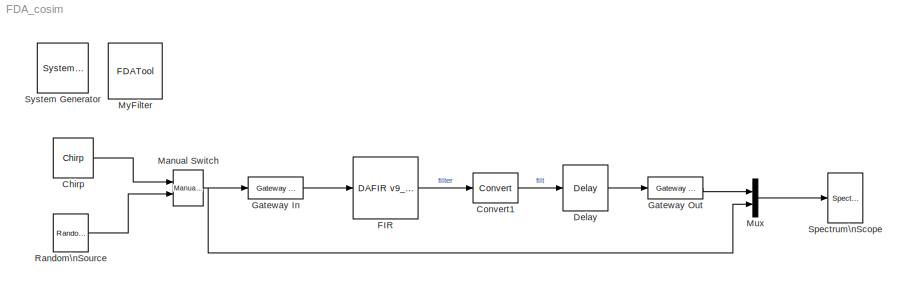
MODEL FDA_cosim
KIND model
BLOCK [Reference]  System Generator  REF=xbsIndex_r4/ System Generator
  AttributesFormatString = System\\nGenerator
  FunctionWithSeparateData = off
  Ports = []
  RTWMemSecDataConstants = Inherit from model
  RTWMemSecDataInternal = Inherit from model
  RTWMemSecDataParameters = Inherit from model
  RTWMemSecFuncExecute = Inherit from model
  RTWMemSecFuncInitTerm = Inherit from model
  ShowPortLabels = FromPortIcon
  SourceBlock = xbsIndex_r4/ System Generator
  SourceType = Xilinx System Generator Block
  SystemSampleTime = -1
  Tag = genX
  UserData = DataTag0
  UserDataPersistent = on
  block_type = sysgen
  block_version = 8.2
  core_generation = According to Block Masks
  dbl_ovrd = According to Block Masks
  deprecated_control = off
  directory = ./netlist
  eval_field = 0
  has_advanced_control = 0
  incr_netlist = off
  infoedit = System Generator
  package = ff896
  part = xc2vp30
  run_coregen = off
  sg_blockgui_xml = <!--  *  <copyright redacted>\n <icon width=\"51\" bg_color=\"beige\" height=\"50\" capti...<+2851ch>
  sg_icon_stat = 51,50,-1,-1,red,beige,0,07734
  sg_mask_display = fprintf('','COMMENT: begin icon graphics');\npatch([0 51 51 0 ],[0 0 50 50 ],[0.93 0.92 0.86]);\npatch([12 4 16 4 12 25 29 33 47 36 25 17 29 17 25 36 47 33 29 25 12 ],[5 13 25 37 45 45 41 45 45 34 45 37 25 13 5 16 5 5 9 5 5 ],[0.6 0.2 0.25]);\nplot([0 0 51 51 0 ],[0 50 50 0 0 ]);\nfprintf('','COMMENT: end icon graphics');\nfprintf('','COMMENT: begin icon text');\nfprintf('','COMMENT: end icon text...<+5ch>
  sggui_pos = -1,-1,-1,-1
  simulink_period = 1/1.5e6
  speed = -7
  synthesis_tool = XST
  sysclk_period = 67
  testbench = on
  trim_vbits = Everywhere in SubSystem
  xilinxfamily = Virtex2P
BLOCK [Reference] Chirp  REF=dspsrcs4/Chirp
  Ports = [0, 1]
  SourceBlock = dspsrcs4/Chirp
  SourceType = Chirp
  Ts = 1/1500000
  Tsweep = 0.5
  datatype = Double
  f0 = 0
  f1 = 750000
  mode = Bidirectional
  phase = 0
  spf = 1
  sweep = Swept cosine
  t1 = 0.05
BLOCK [Reference] Convert1  REF=xbsIndex_r4/Convert
  Ports = [1, 1]
  SourceBlock = xbsIndex_r4/Convert
  SourceType = Xilinx Type Converter Block
  arith_type = Signed  (2's comp)
  bin_pt = 6
  block_type = convert
  block_version = VER_STRING_GOES_HERE
  dbl_ovrd = off
  has_advanced_control = 0
  infoedit = Hardware notes: rounding and saturating require hardware resources; truncating and wrapping do not.
  latency = 0
  n_bits = 8
  overflow = Wrap
  pipeline = off
  quantization = Truncate
  sg_icon_stat = 45,30,1,1,white,blue,0,0eb6e735
  sg_mask_display = fprintf('','COMMENT: begin icon graphics ');\npatch([0 45 45 0 ],[0 0 30 30 ],[0.77 0.82 0.91]);\npatch([15 10 17 10 15 23 25 27 35 28 22 17 23 17 22 28 35 27 25 23 15 ],[3 8 15 22 27 27 25 27 27 20 26 21 15 9 4 10 3 3 5 3 3 ],[0.98 0.96 0.92]);\nplot([0 0 45 45 0 ],[0 30 30 0 0 ]);\nfprintf('','COMMENT: end icon graphics');\n\nfprintf('','COMMENT: begin icon text ');\ncolor('black');port_label('o...<+58ch>
  sggui_pos = -1,-1,-1,-1
  xl_area = [0, 0, 0, 0, 0, 0, 0]
  xl_use_area = off
BLOCK [Reference] Delay  REF=xbsIndex_r4/Delay
  Ports = [1, 1]
  SourceBlock = xbsIndex_r4/Delay
  SourceType = Xilinx Delay Block
  block_type = delay
  block_version = VER_STRING_GOES_HERE
  dbl_ovrd = off
  en = off
  has_advanced_control = 0
  infoedit = Hardware notes: A delay line is a chain, each link of which is an SRL16 followed by a flip-flop. If register retiming is enabled, the delay line is a chain of flip-flops.
  latency = 1
  reg_retiming = off
  sg_icon_stat = 45,46,1,1,white,blue,0,fc531c0e
  sg_mask_display = fprintf('','COMMENT: begin icon graphics ');\npatch([0 45 45 0 ],[0 0 46 46 ],[0.77 0.82 0.91]);\npatch([10 3 14 3 10 22 25 28 41 31 21 14 25 14 21 31 41 28 25 22 10 ],[5 12 23 34 41 41 38 41 41 31 41 34 23 12 5 15 5 5 8 5 5 ],[0.98 0.96 0.92]);\nplot([0 0 45 45 0 ],[0 46 46 0 0 ]);\nfprintf('','COMMENT: end icon graphics');\n\nfprintf('','COMMENT: begin icon text ');\ncolor('black');disp('z^{-1}'...<+58ch>
  sggui_pos = -1,-1,-1,-1
  xl_area = [4 8 0 0 0 0 0]
  xl_use_area = off
BLOCK [Reference] FIR  REF=xbsIndex_r4/DAFIR v9_0 
  Ports = [1, 1]
  SourceBlock = xbsIndex_r4/DAFIR v9_0
  SourceType = Xilinx Finite Impulse Response Filter Block
  block_type = fir
  block_version = VER_STRING_GOES_HERE
  coef = [1 -1]
  coef_bin_pt = 6
  coef_n_bits = 8
  dbl_ovrd = off
  explicit_period = off
  has_advanced_control = 0
  infoedit = Hardware notes: Implemented using distributed arithmetic (DA).  The hardware over sampling rate determines the degree of parallelism.  A rate of one produces a fully parallel DA filter.  A rate of n (resp., n+1) for an n-bit input signal produces a fully serial implementation for a non-symmetric (resp., symmetric) impulse response.  Intermediate values produce implementations with intermediate lev...<+19ch>
  latency = 9
  num_channels = 1
  over_sample = 1
  period = 1
  polyphase_behavior = Single Rate:  sample in - sample out
  reload = off
  rst = off
  serial_input = off
  sg_icon_stat = 65,62,1,1,white,blue,0,3b06b844
  sg_mask_display = fprintf('','COMMENT: begin icon graphics ');\npatch([0 65 65 0 ],[0 0 62 62 ],[0.77 0.82 0.91]);\npatch([16 6 21 6 16 32 36 40 58 44 31 21 35 21 31 44 58 40 36 32 16 ],[7 17 32 47 57 57 53 57 57 43 56 46 32 18 8 21 7 7 11 7 7 ],[0.98 0.96 0.92]);\nplot([0 0 65 65 0 ],[0 62 62 0 0 ]);\nfprintf('','COMMENT: end icon graphics');\n\nfprintf('','COMMENT: begin icon text ');\ncolor('black');port_label('...<+217ch>
  sggui_pos = 404,154,356,444
  structure = Inferred from Coefficients
  use_isim = 1
  valids = off
  xl_area = [0, 0, 0, 0, 0, 0, 0]
  xl_use_area = off
BLOCK [Reference] Gateway In  REF=xbsIndex_r4/Gateway In
  LOCs = {'AG5'}
  Ports = [1, 1]
  SourceBlock = xbsIndex_r4/Gateway In
  SourceType = Xilinx Gateway In Block
  arith_type = Signed  (2's comp)
  bin_pt = 6
  block_type = gatewayin
  block_version = VER_STRING_GOES_HERE
  dbl_ovrd = off
  has_advanced_control = 0
  infoedit = Gateway in block.  Converts inputs of type Simulink integer, double and fixed point to  Xilinx fixed point type.<P><P>Hardware notes:  In hardware these blocks become top level input ports.
  locs_specified = off
  n_bits = 8
  overflow = Wrap
  period = 1/1500000
  quantization = Truncate
  sg_icon_stat = 55,22,1,1,white,yellow,0,4bb76ffd
  sg_mask_display = fprintf('','COMMENT: begin icon graphics ');\npatch([0 55 55 0 ],[0 0 22 22 ],[0.95 0.93 0.65]);\npatch([22 18 23 18 22 28 30 32 38 33 28 25 31 25 28 33 38 32 30 28 22 ],[2 6 11 16 20 20 18 20 20 15 20 17 11 5 2 7 2 2 4 2 2 ],[0.98 0.96 0.92]);\nplot([0 0 55 55 0 ],[0 22 22 0 0 ]);\nfprintf('','COMMENT: end icon graphics');\n\nfprintf('','COMMENT: begin icon text ');\ncolor('black');port_label('in...<+220ch>
  sggui_pos = -1,-1,-1,-1
  timing_constraint = None
  xl_area = [0, 0, 0, 0, 0, 0, 0]
  xl_use_area = off
BLOCK [Reference] Gateway Out  REF=xbsIndex_r4/Gateway Out
  LOCs = {}
  Ports = [1, 1]
  SourceBlock = xbsIndex_r4/Gateway Out
  SourceType = Xilinx Gateway Out Block
  block_type = gatewayout
  block_version = VER_STRING_GOES_HERE
  has_advanced_control = 0
  hdl_port = on
  infoedit = Gateway out block.  Converts Xilinx fixed point inputs into ouputs of type Simulink integer, double, or fixed point.<P><P>Hardware notes:  In hardware these blocks become top level output ports or are discarded, depending on how they are configured.
  locs_specified = off
  sg_icon_stat = 55,22,1,1,white,yellow,0,f0cec300
  sg_mask_display = fprintf('','COMMENT: begin icon graphics ');\npatch([0 55 55 0 ],[0 0 22 22 ],[0.95 0.93 0.65]);\npatch([22 18 23 18 22 28 30 32 38 33 28 25 31 25 28 33 38 32 30 28 22 ],[2 6 11 16 20 20 18 20 20 15 20 17 11 5 2 7 2 2 4 2 2 ],[0.98 0.96 0.92]);\nplot([0 0 55 55 0 ],[0 22 22 0 0 ]);\nfprintf('','COMMENT: end icon graphics');\n\nfprintf('','COMMENT: begin icon text ');\ncolor('black');port_label('in...<+221ch>
  sggui_pos = -1,-1,-1,-1
  timing_constraint = None
  xl_area = [0, 0, 0, 0, 0, 0, 0]
  xl_use_area = off
BLOCK [Reference] Manual Switch  REF=simulink/Signal\nRouting/Manual Switch
  FunctionWithSeparateData = off
  Ports = [2, 1]
  RTWMemSecDataConstants = Inherit from model
  RTWMemSecDataInternal = Inherit from model
  RTWMemSecDataParameters = Inherit from model
  RTWMemSecFuncExecute = Inherit from model
  RTWMemSecFuncInitTerm = Inherit from model
  ShowPortLabels = FromPortIcon
  SourceBlock = simulink/Signal\nRouting/Manual Switch
  SourceType = Manual Switch
  SystemSampleTime = -1
  action = 0
  sw = 1
  varsize = off
BLOCK [Mux] Mux
  DisplayOption = bar
  Inputs = 2
  Ports = [2, 1]
BLOCK [Reference] MyFilter  REF=xbsIndex_r4/FDATool
  Ports = []
  ShowPortLabels = on
  SourceBlock = xbsIndex_r4/FDATool
  SourceType = Xilinx FDATool Interface Block
  UserData = DataTag1
  UserDataPersistent = on
  block_type = fdatool
  block_version = 8.2
  has_advanced_control = 0
  infoedit = FDATool
  sg_blockgui_xml = <!--  *  <copyright redacted>\n <initialization file=\"xlfdatool_init.m\" />\n <block_creation_script file=\"fd...<+1282ch>
  sg_icon_stat = 54,56,-1,-1,blue,white,0,07734
  sg_mask_display = fprintf('','COMMENT: begin icon graphics');\npatch([0 54 54 0 ],[0 0 56 56 ],[0.98 0.96 0.92]);\npatch([13 4 17 4 13 27 31 35 50 38 26 18 32 18 26 38 50 35 31 27 13 ],[7 16 29 42 51 51 47 51 51 39 51 43 29 15 7 19 7 7 11 7 7 ],[0.77 0.82 0.91]);\nplot([0 0 54 54 0 ],[0 56 56 0 0 ]);\nfprintf('','COMMENT: end icon graphics');\nfprintf('','COMMENT: begin icon text');\nfprintf('','COMMENT: end icon t...<+56ch>
  sggui_pos = -1,-1,-1,-1
BLOCK [Reference] Random\nSource  REF=dspsrcs4/Random\nSource
  CltLength = 12
  DataType = Double
  IsInherit = off
  MaxVal = 1
  MeanVal = 0
  MinVal = 0
  NormMethod = Ziggurat
  OutComplex = Real
  Ports = [0, 1]
  RepMode = Not repeatable
  SampFrame = 1
  SampMode = Discrete
  SampTime = 1/1500000
  SourceBlock = dspsrcs4/Random\nSource
  SourceType = Random Source
  SrcType = Uniform
  UserData = DataTag2
  UserDataPersistent = on
  VarVal = 1
  rawSeed = 1
BLOCK [Reference] Spectrum\nScope  REF=dspsnks4/Spectrum\nScope
  AxisGrid = on
  AxisLegend = off
  AxisProperties = off
  AxisZoom = off
  BufferSize = 512
  DialogController = dspdialog.SpectrumScope
  DialogControllerArgs = DataTag3
  DisplayProperties = off
  Domain = Frequency
  FFTlength = 512
  FigPos = get(0,'defaultfigureposition')
  FrameNumber = on
  FunctionWithSeparateData = off
  HorizSpan = 1
  InheritXIncr = off
  LineColors = [1 0 0]|[0 0 1]
  LineProperties = off
  Memory = off
  OpenScopeAtSimStart = on
  OpenScopeImmediately = off
  Overlap = 64
  Ports = [1]
  RTWMemSecDataConstants = Inherit from model
  RTWMemSecDataInternal = Inherit from model
  RTWMemSecDataParameters = Inherit from model
  RTWMemSecFuncExecute = Inherit from model
  RTWMemSecFuncInitTerm = Inherit from model
  RsSpecScope = 50
  ScopeProperties = on
  ShowPortLabels = off
  SourceBlock = dspsnks4/Spectrum\nScope
  SourceType = Spectrum Scope
  SystemSampleTime = -1
  UseBuffer = on
  XIncr = 1/1500000
  XLabel = Samples
  XRange = [0...Fs/2]
  XUnits = Hertz
  YLabel = Magnitude-squared, dB
  YMax = 20
  YMin = -60
  YUnits = dB
  betaSpecScope = 5
  inpFftLenInherit = on
  numAvg = 5
  winsampSpecScope = Periodic
  wintypeSpecScope = Hann
LINE Chirp:1 -> Manual Switch:1
LINE Convert1:1 -> Delay:1
LINE Delay:1 -> Gateway Out:1
LINE FIR:1 -> Convert1:1
LINE Gateway In:1 -> FIR:1
LINE Gateway Out:1 -> Mux:1
NET Manual Switch:1 -> Gateway In:1, Mux:2
LINE Mux:1 -> Spectrum\nScope:1
LINE Random\nSource:1 -> Manual Switch:2
note: NET lines group one-source signal fan-out (src -> all destinations, sorted); 1:1 wires keep LINE
